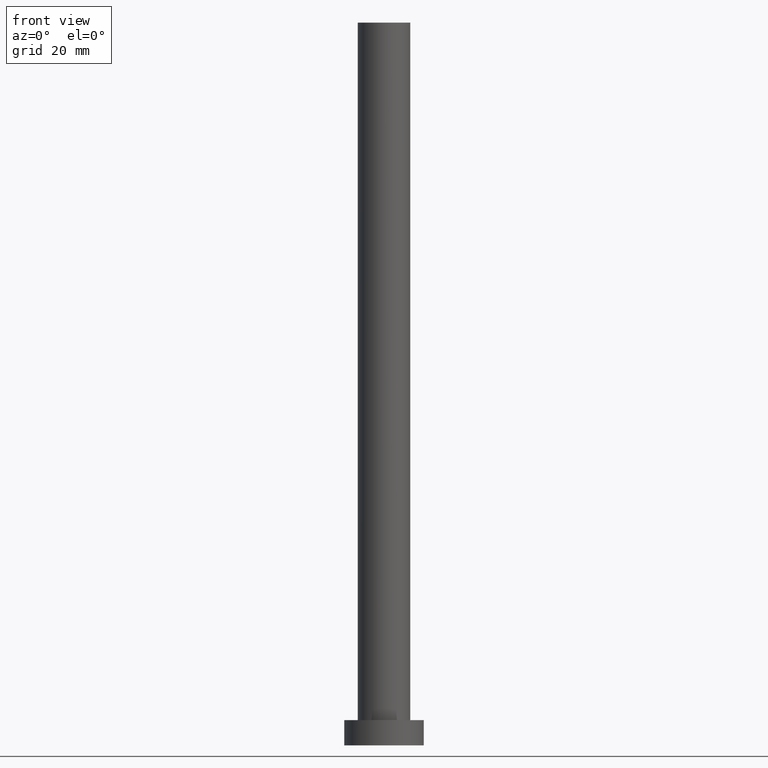
[diagram: clean part render]
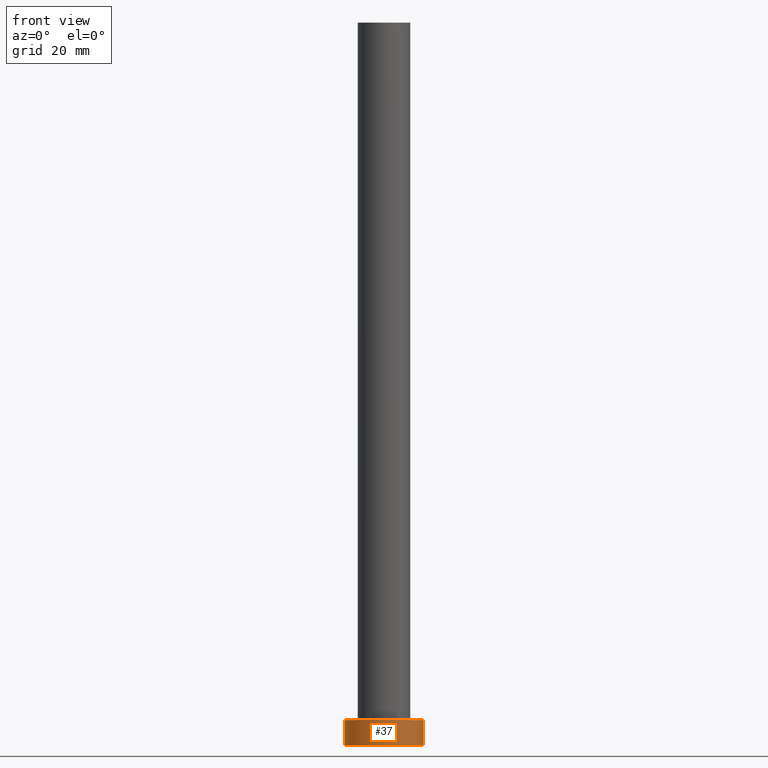
[diagram: same view with one face highlighted and labeled with its STEP entity id]
A machine part, front view. The second image highlights one B-rep face of the part: STEP entity #37.
In plain terms, the highlighted cylindrical surface (partial cylindrical patch) has radius 11 mm, axis along (-0, -0, -1).
Its self-contained STEP definition (entity closure, byte-faithful):
#2 = EDGE_CURVE ( 'NONE', #222, #101, #50, .T. ) ;
#11 = DIRECTION ( 'NONE',  ( -0.000000000000000000, -0.000000000000000000, -1.000000000000000000 ) ) ;
#18 = VERTEX_POINT ( 'NONE', #89 ) ;
#23 = DIRECTION ( 'NONE',  ( -0.000000000000000000, -0.000000000000000000, -1.000000000000000000 ) ) ;
#27 = AXIS2_PLACEMENT_3D ( 'NONE', #193, #58, #138 ) ;
#33 = ORIENTED_EDGE ( 'NONE', *, *, #148, .F. ) ;
#34 = ORIENTED_EDGE ( 'NONE', *, *, #62, .T. ) ;
#37 = ADVANCED_FACE ( 'NONE', ( #42 ), #242, .T. ) ;
#42 = FACE_OUTER_BOUND ( 'NONE', #209, .T. ) ;
#45 = DIRECTION ( 'NONE',  ( -1.000000000000000000, 0.000000000000000000, 0.000000000000000000 ) ) ;
#50 = CIRCLE ( 'NONE', #124, 11.00000000000000000 ) ;
#56 = LINE ( 'NONE', #86, #186 ) ;
#58 = DIRECTION ( 'NONE',  ( 0.000000000000000000, 0.000000000000000000, 1.000000000000000000 ) ) ;
#62 = EDGE_CURVE ( 'NONE', #18, #222, #56, .T. ) ;
#86 = CARTESIAN_POINT ( 'NONE',  ( -11.00000000000000000, 0.000000000000000000, 7.000000000000000000 ) ) ;
#89 = CARTESIAN_POINT ( 'NONE',  ( -11.00000000000000000, 0.000000000000000000, 7.000000000000000000 ) ) ;
#90 = LINE ( 'NONE', #169, #102 ) ;
#101 = VERTEX_POINT ( 'NONE', #127 ) ;
#102 = VECTOR ( 'NONE', #23, 1000.000000000000000 ) ;
#124 = AXIS2_PLACEMENT_3D ( 'NONE', #132, #188, #126 ) ;
#126 = DIRECTION ( 'NONE',  ( 1.000000000000000000, 0.000000000000000000, 0.000000000000000000 ) ) ;
#127 = CARTESIAN_POINT ( 'NONE',  ( 11.00000000000000000, 1.347111479062088405E-15, 0.000000000000000000 ) ) ;
#132 = CARTESIAN_POINT ( 'NONE',  ( 0.000000000000000000, 0.000000000000000000, 0.000000000000000000 ) ) ;
#138 = DIRECTION ( 'NONE',  ( 1.000000000000000000, 0.000000000000000000, 0.000000000000000000 ) ) ;
#148 = EDGE_CURVE ( 'NONE', #18, #210, #178, .T. ) ;
#169 = CARTESIAN_POINT ( 'NONE',  ( 11.00000000000000000, 1.347111479062088405E-15, 7.000000000000000000 ) ) ;
#178 = CIRCLE ( 'NONE', #27, 11.00000000000000000 ) ;
#185 = ORIENTED_EDGE ( 'NONE', *, *, #228, .F. ) ;
#186 = VECTOR ( 'NONE', #11, 1000.000000000000000 ) ;
#188 = DIRECTION ( 'NONE',  ( 0.000000000000000000, 0.000000000000000000, 1.000000000000000000 ) ) ;
#193 = CARTESIAN_POINT ( 'NONE',  ( 0.000000000000000000, 0.000000000000000000, 7.000000000000000000 ) ) ;
#209 = EDGE_LOOP ( 'NONE', ( #185, #33, #34, #212 ) ) ;
#210 = VERTEX_POINT ( 'NONE', #217 ) ;
#212 = ORIENTED_EDGE ( 'NONE', *, *, #2, .T. ) ;
#217 = CARTESIAN_POINT ( 'NONE',  ( 11.00000000000000000, 1.347111479062088405E-15, 7.000000000000000000 ) ) ;
#222 = VERTEX_POINT ( 'NONE', #229 ) ;
#226 = DIRECTION ( 'NONE',  ( -0.000000000000000000, -0.000000000000000000, -1.000000000000000000 ) ) ;
#228 = EDGE_CURVE ( 'NONE', #210, #101, #90, .T. ) ;
#229 = CARTESIAN_POINT ( 'NONE',  ( -11.00000000000000000, 0.000000000000000000, 0.000000000000000000 ) ) ;
#237 = CARTESIAN_POINT ( 'NONE',  ( 0.000000000000000000, 0.000000000000000000, 7.000000000000000000 ) ) ;
#242 = CYLINDRICAL_SURFACE ( 'NONE', #247, 11.00000000000000000 ) ;
#247 = AXIS2_PLACEMENT_3D ( 'NONE', #237, #226, #45 ) ;